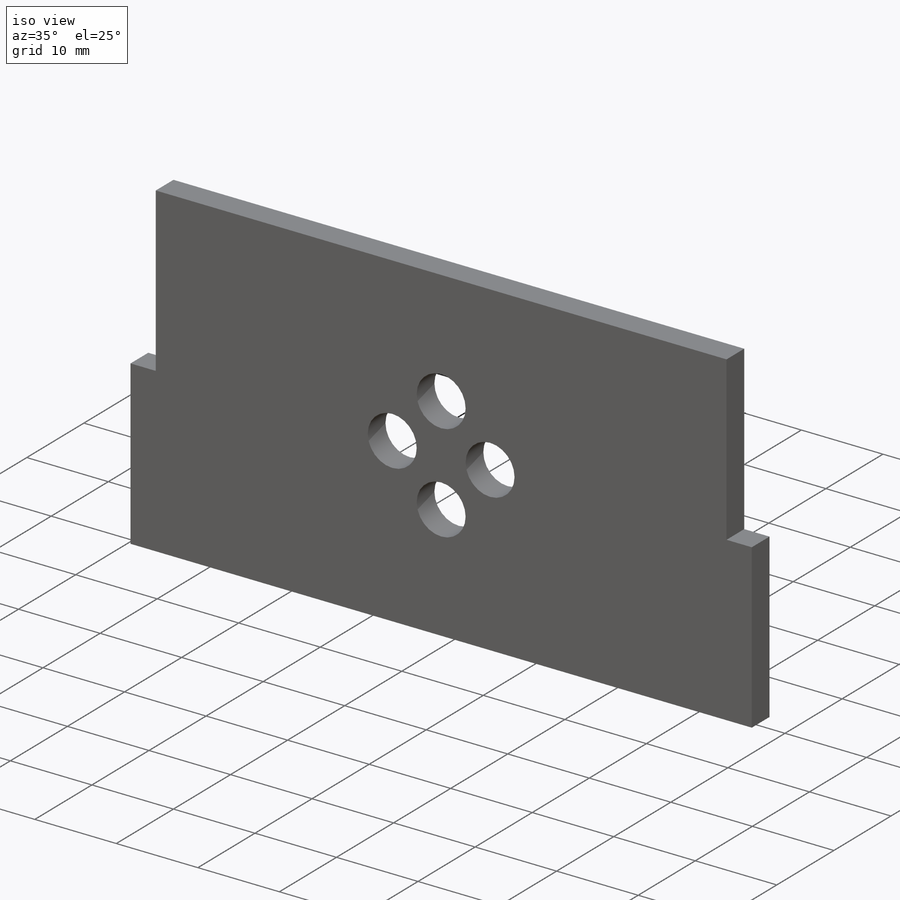
[diagram: iso view]
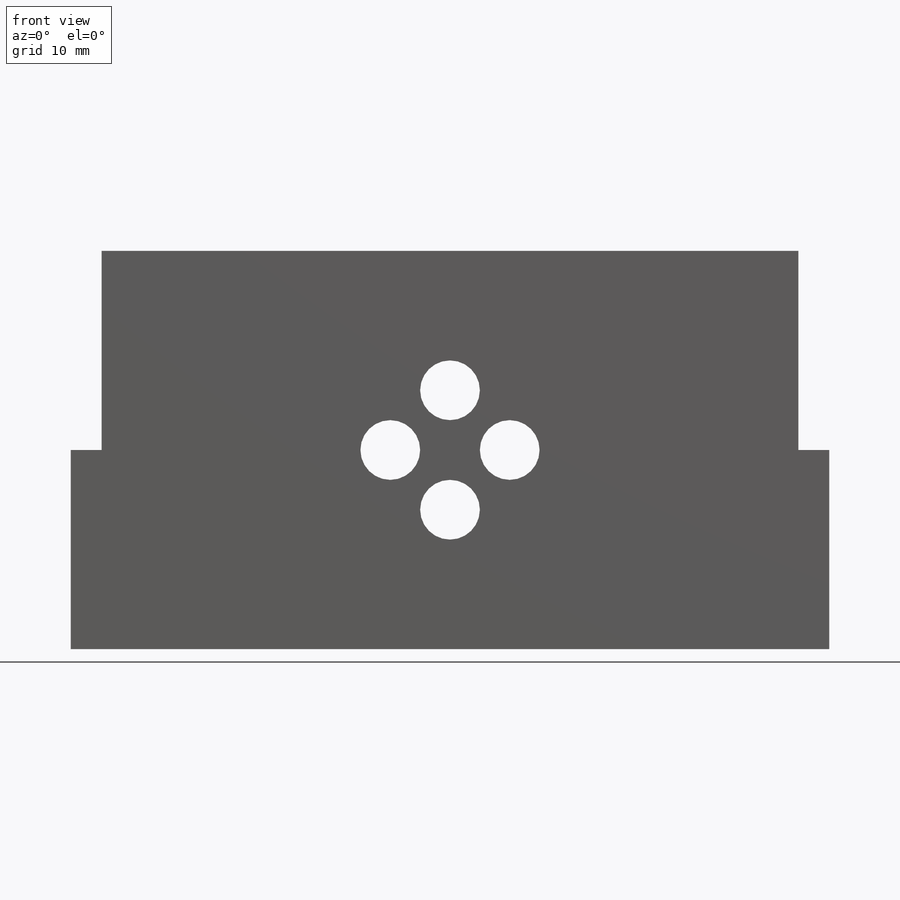
[diagram: front view]
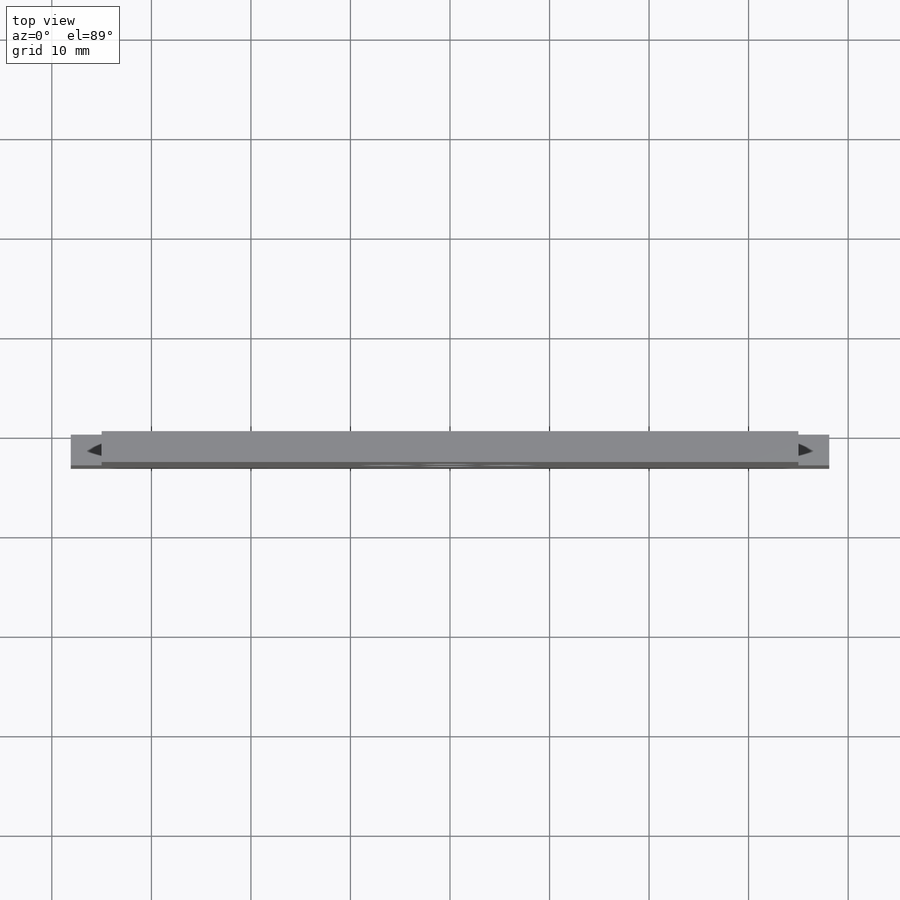
[diagram: top view]
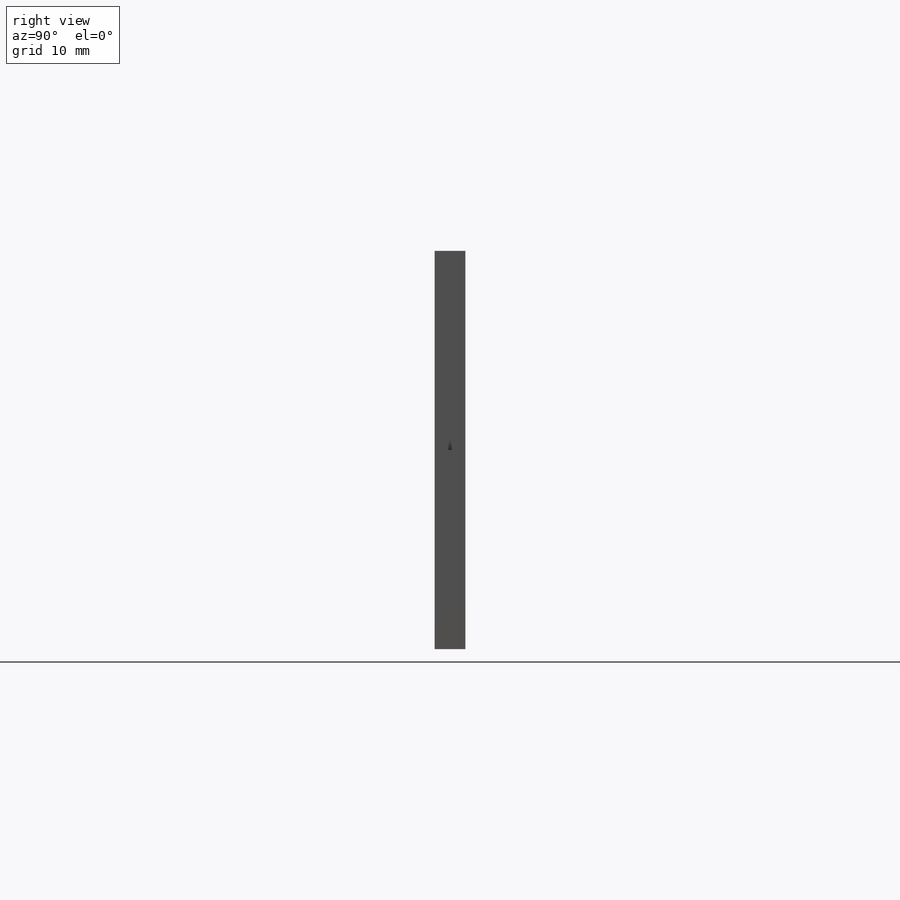
[diagram: right view]
SOLIDWORKS PART (.sldprt)
format: sldprt  version: not decoded by parser v0  size: 475,136 bytes
history: native  units: mm
features: sketch x4, extrude x4, material x1 (+13 scaffold rows collapsed)
feature tree (22):
  scaffold x13  (default folders/planes/origin — collapsed)
  material  "Teak"
  sketch  "Sketch1"  dims[c1.D3=6.0mm c1.D4=5.0mm c1.D1=70.0mm c1.D2=40.0mm c2.D3=20.0mm c2.D4=10.0mm c3.D4=2.5mm c3.D5=12.0mm c3.D6=0.0mm c4.D4=4.0]
  extrude  "Boss-Extrude1"  Depth=3.1mm
  sketch  "Sketch2"  dims[D1=3.1mm]
  extrude  "Boss-Extrude2"  [1 undecoded]
  sketch  "Sketch3"  dims[c1.D3=6.0mm c1.D4=5.0mm c1.D1=46.0mm c1.D2=40.0mm c2.D3=20.0mm c2.D4=10.0mm c3.D4=2.5mm c3.D5=12.0mm c3.D6=0.0mm c4.D4=2.0]
  sketch  "Sketch4"  dims[D1=3.1mm]
  extrude  "Boss-Extrude3"  Depth=3.1mm
  extrude  "Boss-Extrude4"  [1 undecoded]
decode coverage: 6 of 8 modeling features carry decoded parameters
note: 2 parameter values undecoded
note: suppression state not decoded; provenance and decode notes live in map.json
